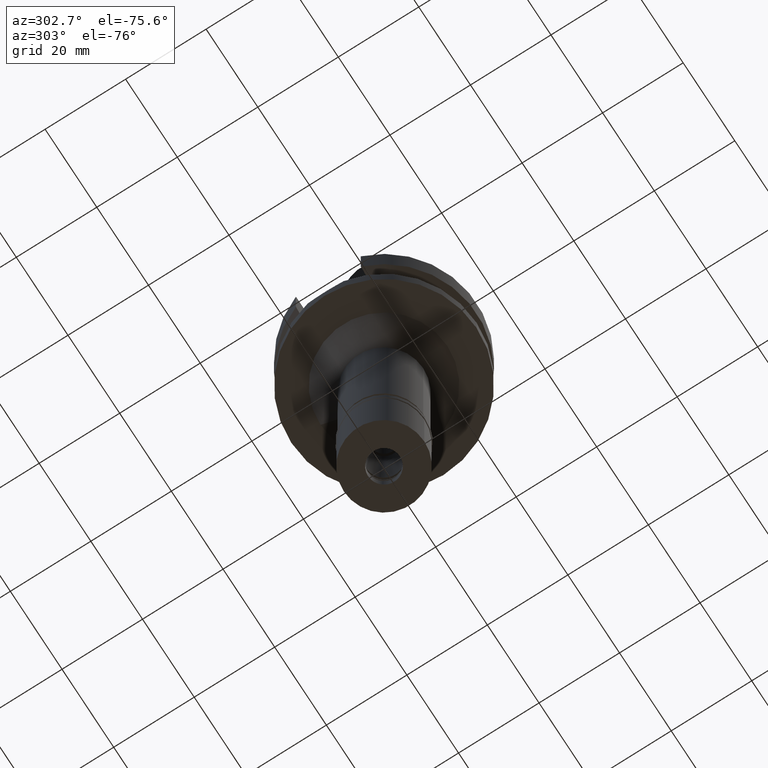
[diagram: clean part render]
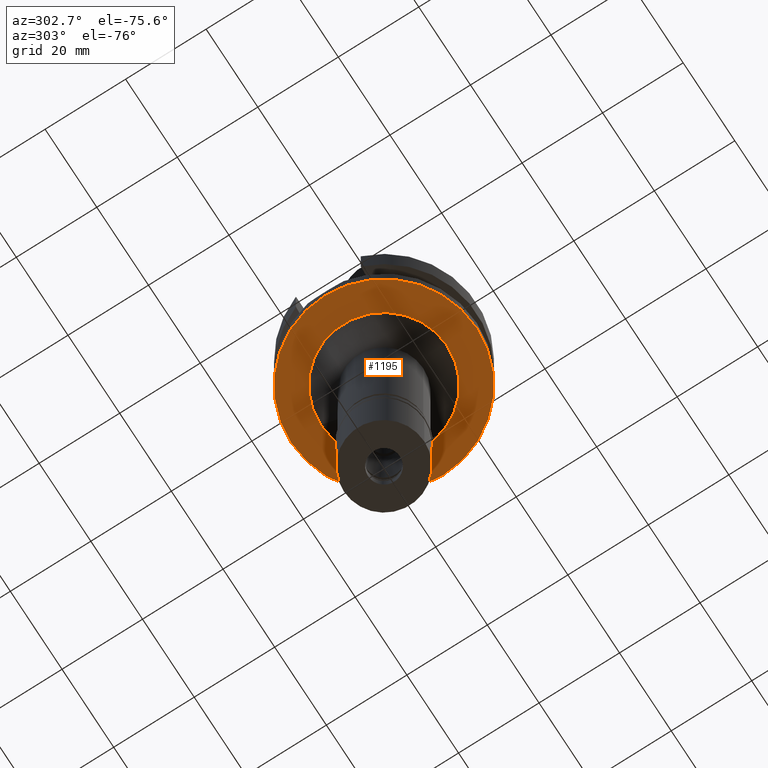
[diagram: same view with one face highlighted and labeled with its STEP entity id]
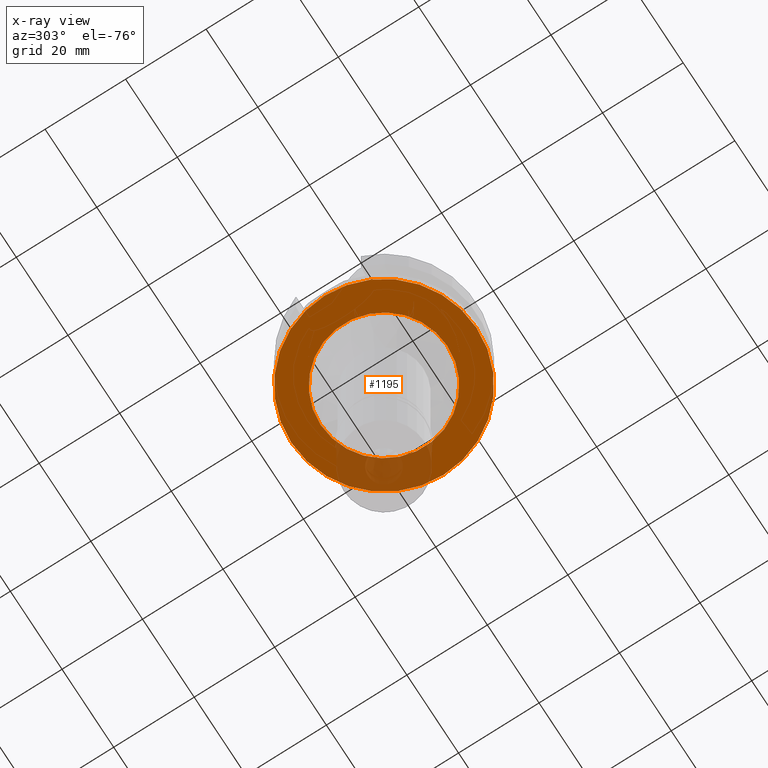
[diagram: x-ray of the same camera — body ghosted, the highlighted face saturated]
A machine part, auxiliary view. The second image highlights one B-rep face of the part: STEP entity #1195.
The next image is the same camera in x-ray: the body ghosted, the highlighted face saturated — about 17% of this face is hidden behind the body in this view.
In plain terms, the highlighted planar face has unit normal (0, 0, -1).
Its self-contained STEP definition (entity closure, byte-faithful):
#29 = DIRECTION ( 'NONE',  ( 0.0000000000000000000, 0.0000000000000000000, 1.000000000000000000 ) ) ;
#88 = DIRECTION ( 'NONE',  ( 0.0000000000000000000, 1.000000000000000000, 0.0000000000000000000 ) ) ;
#101 = CARTESIAN_POINT ( 'NONE',  ( 0.0000000000000000000, 1.897222821238999746E-14, -22.00000000000000000 ) ) ;
#104 = AXIS2_PLACEMENT_3D ( 'NONE', #2242, #2445, #2461 ) ;
#137 = FACE_OUTER_BOUND ( 'NONE', #220, .T. ) ;
#169 = ORIENTED_EDGE ( 'NONE', *, *, #2271, .F. ) ;
#220 = EDGE_LOOP ( 'NONE', ( #515, #1395 ) ) ;
#316 = CARTESIAN_POINT ( 'NONE',  ( 0.0000000000000000000, 1.897222821238999746E-14, -22.00000000000000000 ) ) ;
#352 = DIRECTION ( 'NONE',  ( 0.0000000000000000000, 0.0000000000000000000, -1.000000000000000000 ) ) ;
#451 = CIRCLE ( 'NONE', #104, 15.75000000000000000 ) ;
#515 = ORIENTED_EDGE ( 'NONE', *, *, #2761, .F. ) ;
#814 = DIRECTION ( 'NONE',  ( 0.0000000000000000000, -1.000000000000000000, 0.0000000000000000000 ) ) ;
#869 = CARTESIAN_POINT ( 'NONE',  ( 0.0000000000000000000, 0.0000000000000000000, -22.00000000000000000 ) ) ;
#874 = AXIS2_PLACEMENT_3D ( 'NONE', #316, #29, #1249 ) ;
#891 = AXIS2_PLACEMENT_3D ( 'NONE', #101, #1264, #1030 ) ;
#1030 = DIRECTION ( 'NONE',  ( 0.0000000000000000000, 1.000000000000000000, 0.0000000000000000000 ) ) ;
#1064 = CARTESIAN_POINT ( 'NONE',  ( 0.0000000000000000000, 15.75000000000000000, -22.00000000000000000 ) ) ;
#1179 = CIRCLE ( 'NONE', #891, 23.00000000000000000 ) ;
#1195 = ADVANCED_FACE ( 'NONE', ( #137, #2012 ), #1319, .T. ) ;
#1230 = VERTEX_POINT ( 'NONE', #1339 ) ;
#1249 = DIRECTION ( 'NONE',  ( 0.0000000000000000000, -1.000000000000000000, 0.0000000000000000000 ) ) ;
#1264 = DIRECTION ( 'NONE',  ( 0.0000000000000000000, 0.0000000000000000000, 1.000000000000000000 ) ) ;
#1319 = PLANE ( 'NONE',  #2618 ) ;
#1339 = CARTESIAN_POINT ( 'NONE',  ( 0.0000000000000000000, -15.75000000000000000, -22.00000000000000000 ) ) ;
#1395 = ORIENTED_EDGE ( 'NONE', *, *, #1510, .F. ) ;
#1510 = EDGE_CURVE ( 'NONE', #1523, #2553, #2204, .T. ) ;
#1523 = VERTEX_POINT ( 'NONE', #2391 ) ;
#1579 = AXIS2_PLACEMENT_3D ( 'NONE', #2486, #352, #88 ) ;
#2012 = FACE_BOUND ( 'NONE', #2273, .T. ) ;
#2204 = CIRCLE ( 'NONE', #874, 23.00000000000000000 ) ;
#2242 = CARTESIAN_POINT ( 'NONE',  ( 0.0000000000000000000, 0.0000000000000000000, -22.00000000000000000 ) ) ;
#2260 = DIRECTION ( 'NONE',  ( 0.0000000000000000000, 0.0000000000000000000, -1.000000000000000000 ) ) ;
#2271 = EDGE_CURVE ( 'NONE', #2654, #1230, #2617, .T. ) ;
#2273 = EDGE_LOOP ( 'NONE', ( #169, #2757 ) ) ;
#2391 = CARTESIAN_POINT ( 'NONE',  ( 0.0000000000000000000, -23.00000000000000000, -22.00000000000000000 ) ) ;
#2445 = DIRECTION ( 'NONE',  ( 0.0000000000000000000, 0.0000000000000000000, -1.000000000000000000 ) ) ;
#2461 = DIRECTION ( 'NONE',  ( 0.0000000000000000000, -1.000000000000000000, 0.0000000000000000000 ) ) ;
#2486 = CARTESIAN_POINT ( 'NONE',  ( 0.0000000000000000000, 0.0000000000000000000, -22.00000000000000000 ) ) ;
#2553 = VERTEX_POINT ( 'NONE', #2884 ) ;
#2617 = CIRCLE ( 'NONE', #1579, 15.75000000000000000 ) ;
#2618 = AXIS2_PLACEMENT_3D ( 'NONE', #869, #2260, #814 ) ;
#2646 = EDGE_CURVE ( 'NONE', #1230, #2654, #451, .T. ) ;
#2654 = VERTEX_POINT ( 'NONE', #1064 ) ;
#2757 = ORIENTED_EDGE ( 'NONE', *, *, #2646, .F. ) ;
#2761 = EDGE_CURVE ( 'NONE', #2553, #1523, #1179, .T. ) ;
#2884 = CARTESIAN_POINT ( 'NONE',  ( 0.0000000000000000000, 23.00000000000000000, -22.00000000000000000 ) ) ;